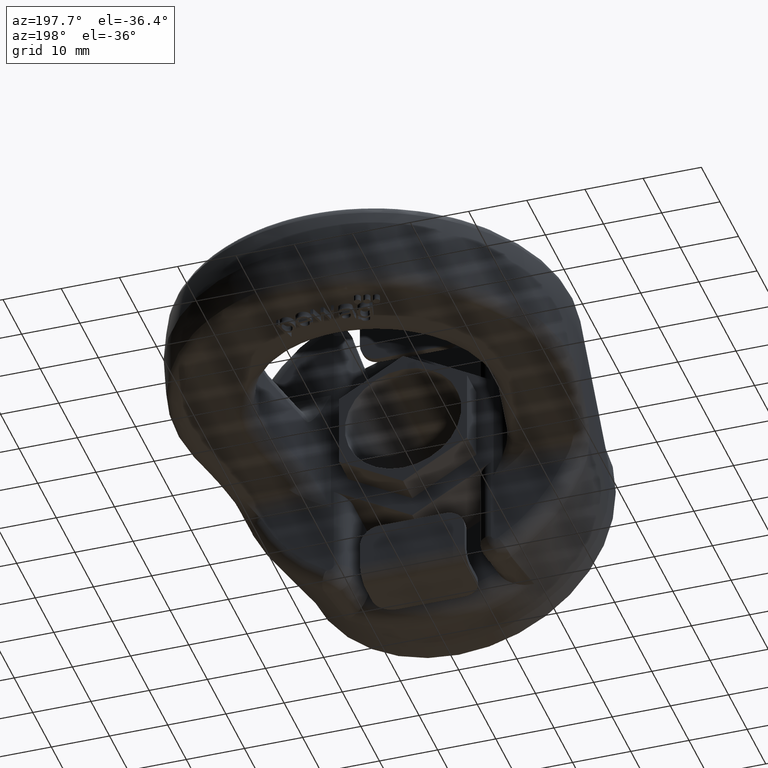
[diagram: clean part render]
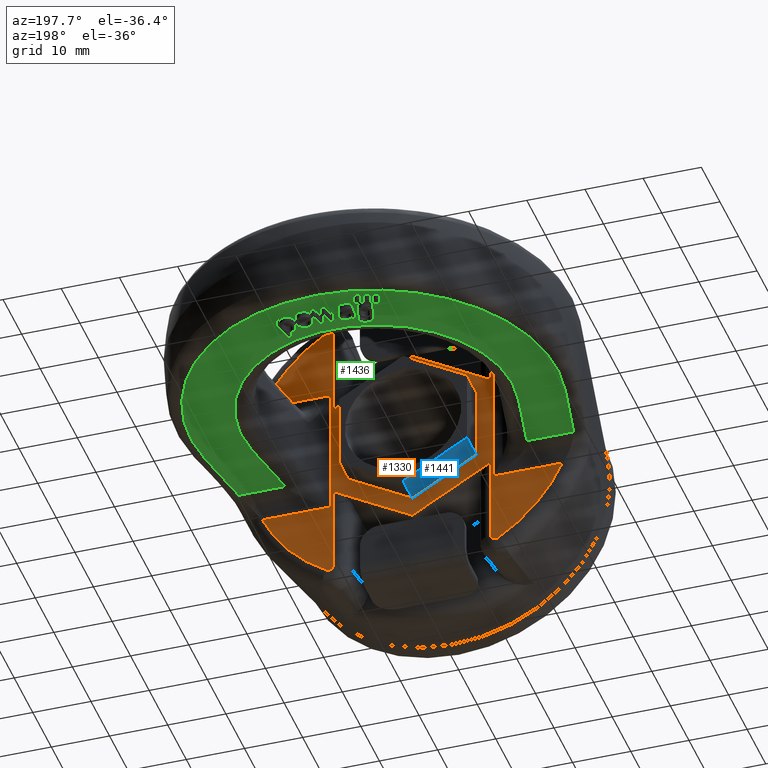
[diagram: same view with three faces highlighted in distinct colors, each labeled with its STEP entity id]
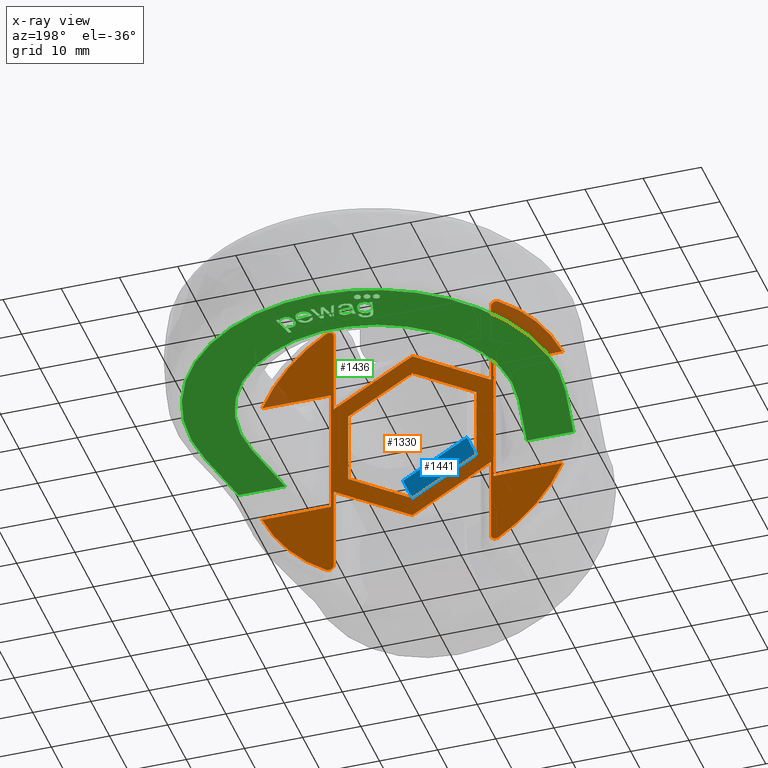
[diagram: x-ray of the same camera — body ghosted, the three highlighted faces saturated]
A machine part, auxiliary view with three faces highlighted in distinct colors.
The next image is the same camera in x-ray (body ghosted, the three faces saturated) — at least one of them is partly hidden behind the body in this view.
Their STEP definitions:

[orange] entity #1330 — the highlighted planar face has unit normal (0, 1, 0).
#1330=ADVANCED_FACE('',(#1781,#1782),#1567,.T.);
#1567=PLANE('',#5133);
#1695=CIRCLE('',#5129,28.1825615098555);
#1696=CIRCLE('',#5130,28.1825615098555);
#1697=CIRCLE('',#5131,28.1825615098555);
#1698=CIRCLE('',#5132,28.1825615098555);
#1781=FACE_BOUND('',#1844,.T.);
#1782=FACE_BOUND('',#1845,.T.);
#1844=EDGE_LOOP('',(#2799,#2800,#2801,#2802,#2803,#2804,#2805,#2806,#2807,
#2808,#2809,#2810,#2811,#2812,#2813,#2814,#2815,#2816,#2817,#2818,#2819,
#2820));
#1845=EDGE_LOOP('',(#2821,#2822,#2823,#2824,#2825,#2826));
#2142=LINE('',#6696,#2412);
#2143=LINE('',#6699,#2413);
#2144=LINE('',#6726,#2414);
#2145=LINE('',#6728,#2415);
#2146=LINE('',#6730,#2416);
#2147=LINE('',#6732,#2417);
#2148=LINE('',#6759,#2418);
#2149=LINE('',#6761,#2419);
#2150=LINE('',#6763,#2420);
#2151=LINE('',#6790,#2421);
#2152=LINE('',#6792,#2422);
#2153=LINE('',#6794,#2423);
#2154=LINE('',#6796,#2424);
#2155=LINE('',#6823,#2425);
#2156=LINE('',#6824,#2426);
#2157=LINE('',#6827,#2427);
#2158=LINE('',#6829,#2428);
#2159=LINE('',#6831,#2429);
#2160=LINE('',#6833,#2430);
#2161=LINE('',#6835,#2431);
#2412=VECTOR('',#5471,1.);
#2413=VECTOR('',#5472,1.);
#2414=VECTOR('',#5475,1.);
#2415=VECTOR('',#5476,1.);
#2416=VECTOR('',#5477,1.);
#2417=VECTOR('',#5478,1.);
#2418=VECTOR('',#5481,1.);
#2419=VECTOR('',#5482,1.);
#2420=VECTOR('',#5483,1.);
#2421=VECTOR('',#5486,1.);
#2422=VECTOR('',#5487,1.);
#2423=VECTOR('',#5488,1.);
#2424=VECTOR('',#5489,1.);
#2425=VECTOR('',#5492,1.);
#2426=VECTOR('',#5493,1.);
#2427=VECTOR('',#5494,1.);
#2428=VECTOR('',#5495,1.);
#2429=VECTOR('',#5496,1.);
#2430=VECTOR('',#5497,1.);
#2431=VECTOR('',#5498,1.);
#2799=ORIENTED_EDGE('',*,*,#4351,.T.);
#2800=ORIENTED_EDGE('',*,*,#4352,.T.);
#2801=ORIENTED_EDGE('',*,*,#4353,.T.);
#2802=ORIENTED_EDGE('',*,*,#4354,.T.);
#2803=ORIENTED_EDGE('',*,*,#4355,.T.);
#2804=ORIENTED_EDGE('',*,*,#4356,.T.);
#2805=ORIENTED_EDGE('',*,*,#4357,.T.);
#2806=ORIENTED_EDGE('',*,*,#4358,.T.);
#2807=ORIENTED_EDGE('',*,*,#4359,.T.);
#2808=ORIENTED_EDGE('',*,*,#4360,.T.);
#2809=ORIENTED_EDGE('',*,*,#4361,.T.);
#2810=ORIENTED_EDGE('',*,*,#4362,.T.);
#2811=ORIENTED_EDGE('',*,*,#4363,.T.);
#2812=ORIENTED_EDGE('',*,*,#4364,.T.);
#2813=ORIENTED_EDGE('',*,*,#4365,.T.);
#2814=ORIENTED_EDGE('',*,*,#4366,.T.);
#2815=ORIENTED_EDGE('',*,*,#4367,.T.);
#2816=ORIENTED_EDGE('',*,*,#4368,.T.);
#2817=ORIENTED_EDGE('',*,*,#4369,.T.);
#2818=ORIENTED_EDGE('',*,*,#4370,.T.);
#2819=ORIENTED_EDGE('',*,*,#4371,.T.);
#2820=ORIENTED_EDGE('',*,*,#4372,.T.);
#2821=ORIENTED_EDGE('',*,*,#4373,.T.);
#2822=ORIENTED_EDGE('',*,*,#4374,.T.);
#2823=ORIENTED_EDGE('',*,*,#4375,.T.);
#2824=ORIENTED_EDGE('',*,*,#4376,.T.);
#2825=ORIENTED_EDGE('',*,*,#4377,.F.);
#2826=ORIENTED_EDGE('',*,*,#4378,.T.);
#3963=VERTEX_POINT('',#6697);
#3964=VERTEX_POINT('',#6698);
#3965=VERTEX_POINT('',#6700);
#3966=VERTEX_POINT('',#6702);
#3967=VERTEX_POINT('',#6725);
#3968=VERTEX_POINT('',#6727);
#3969=VERTEX_POINT('',#6729);
#3970=VERTEX_POINT('',#6731);
#3971=VERTEX_POINT('',#6733);
#3972=VERTEX_POINT('',#6756);
#3973=VERTEX_POINT('',#6758);
#3974=VERTEX_POINT('',#6760);
#3975=VERTEX_POINT('',#6762);
#3976=VERTEX_POINT('',#6764);
#3977=VERTEX_POINT('',#6766);
#3978=VERTEX_POINT('',#6789);
#3979=VERTEX_POINT('',#6791);
#3980=VERTEX_POINT('',#6793);
#3981=VERTEX_POINT('',#6795);
#3982=VERTEX_POINT('',#6797);
#3983=VERTEX_POINT('',#6820);
#3984=VERTEX_POINT('',#6822);
#3985=VERTEX_POINT('',#6825);
#3986=VERTEX_POINT('',#6826);
#3987=VERTEX_POINT('',#6828);
#3988=VERTEX_POINT('',#6830);
#3989=VERTEX_POINT('',#6832);
#3990=VERTEX_POINT('',#6834);
#4351=EDGE_CURVE('',#3963,#3964,#2142,.T.);
#4352=EDGE_CURVE('',#3964,#3965,#2143,.T.);
#4353=EDGE_CURVE('',#3965,#3966,#1695,.T.);
#4354=EDGE_CURVE('',#3966,#3967,#4878,.T.);
#4355=EDGE_CURVE('',#3967,#3968,#2144,.T.);
#4356=EDGE_CURVE('',#3968,#3969,#2145,.T.);
#4357=EDGE_CURVE('',#3969,#3970,#2146,.T.);
#4358=EDGE_CURVE('',#3970,#3971,#2147,.T.);
#4359=EDGE_CURVE('',#3971,#3972,#4879,.T.);
#4360=EDGE_CURVE('',#3972,#3973,#1696,.T.);
#4361=EDGE_CURVE('',#3973,#3974,#2148,.T.);
#4362=EDGE_CURVE('',#3974,#3975,#2149,.T.);
#4363=EDGE_CURVE('',#3975,#3976,#2150,.T.);
#4364=EDGE_CURVE('',#3976,#3977,#1697,.T.);
#4365=EDGE_CURVE('',#3977,#3978,#4880,.T.);
#4366=EDGE_CURVE('',#3978,#3979,#2151,.T.);
#4367=EDGE_CURVE('',#3979,#3980,#2152,.T.);
#4368=EDGE_CURVE('',#3980,#3981,#2153,.T.);
#4369=EDGE_CURVE('',#3981,#3982,#2154,.T.);
#4370=EDGE_CURVE('',#3982,#3983,#4881,.T.);
#4371=EDGE_CURVE('',#3983,#3984,#1698,.T.);
#4372=EDGE_CURVE('',#3984,#3963,#2155,.T.);
#4373=EDGE_CURVE('',#3985,#3986,#2156,.T.);
#4374=EDGE_CURVE('',#3986,#3987,#2157,.T.);
#4375=EDGE_CURVE('',#3987,#3988,#2158,.T.);
#4376=EDGE_CURVE('',#3988,#3989,#2159,.T.);
#4377=EDGE_CURVE('',#3990,#3989,#2160,.T.);
#4378=EDGE_CURVE('',#3990,#3985,#2161,.T.);
#4878=B_SPLINE_CURVE_WITH_KNOTS('',3,(#6703,#6704,#6705,#6706,#6707,#6708,
#6709,#6710,#6711,#6712,#6713,#6714,#6715,#6716,#6717,#6718,#6719,#6720,
#6721,#6722,#6723,#6724),.UNSPECIFIED.,.F.,.F.,(4,3,3,3,3,3,3,4),(0.,0.155574890290313,
0.31123813576028,0.465796834556847,0.621147364247244,0.779386530394568,
0.941446885450693,1.),.UNSPECIFIED.);
#4879=B_SPLINE_CURVE_WITH_KNOTS('',3,(#6734,#6735,#6736,#6737,#6738,#6739,
#6740,#6741,#6742,#6743,#6744,#6745,#6746,#6747,#6748,#6749,#6750,#6751,
#6752,#6753,#6754,#6755),.UNSPECIFIED.,.F.,.F.,(4,3,3,3,3,3,3,4),(0.,0.165310444201862,
0.330738255450012,0.494231242784455,0.653812705288848,0.809869276415893,
0.964323604734041,1.),.UNSPECIFIED.);
#4880=B_SPLINE_CURVE_WITH_KNOTS('',3,(#6767,#6768,#6769,#6770,#6771,#6772,
#6773,#6774,#6775,#6776,#6777,#6778,#6779,#6780,#6781,#6782,#6783,#6784,
#6785,#6786,#6787,#6788),.UNSPECIFIED.,.F.,.F.,(4,3,3,3,3,3,3,4),(0.,0.155574890290314,
0.311238135760281,0.465796834556847,0.621147364247244,0.779386530394568,
0.941446885450693,1.),.UNSPECIFIED.);
#4881=B_SPLINE_CURVE_WITH_KNOTS('',3,(#6798,#6799,#6800,#6801,#6802,#6803,
#6804,#6805,#6806,#6807,#6808,#6809,#6810,#6811,#6812,#6813,#6814,#6815,
#6816,#6817,#6818,#6819),.UNSPECIFIED.,.F.,.F.,(4,3,3,3,3,3,3,4),(0.,0.165310444201862,
0.330738255450012,0.494231242784455,0.653812705288848,0.809869276415894,
0.964323604734041,1.),.UNSPECIFIED.);
#5129=AXIS2_PLACEMENT_3D('',#6701,#5473,#5474);
#5130=AXIS2_PLACEMENT_3D('',#6757,#5479,#5480);
#5131=AXIS2_PLACEMENT_3D('',#6765,#5484,#5485);
#5132=AXIS2_PLACEMENT_3D('',#6821,#5490,#5491);
#5133=AXIS2_PLACEMENT_3D('',#6836,#5499,#5500);
#5471=DIRECTION('',(0.,0.,-1.));
#5472=DIRECTION('',(1.,0.,2.34291072916505E-15));
#5473=DIRECTION('',(0.,1.,0.));
#5474=DIRECTION('',(2.34291072916505E-15,0.,-1.));
#5475=DIRECTION('',(-2.34291072916505E-15,0.,1.));
#5476=DIRECTION('',(-0.866025403784438,0.,-0.500000000000001));
#5477=DIRECTION('',(-0.86602540378444,0.,0.499999999999997));
#5478=DIRECTION('',(2.34291072916505E-15,0.,-1.));
#5479=DIRECTION('',(0.,1.,0.));
#5480=DIRECTION('',(2.34291072916505E-15,0.,-1.));
#5481=DIRECTION('',(1.,0.,2.34291072916505E-15));
#5482=DIRECTION('',(0.,0.,1.));
#5483=DIRECTION('',(-1.,0.,0.));
#5484=DIRECTION('',(0.,1.,0.));
#5485=DIRECTION('',(0.,0.,1.));
#5486=DIRECTION('',(0.,0.,-1.));
#5487=DIRECTION('',(0.866025403784439,0.,0.499999999999999));
#5488=DIRECTION('',(0.866025403784439,0.,-0.499999999999999));
#5489=DIRECTION('',(0.,0.,1.));
#5490=DIRECTION('',(0.,1.,0.));
#5491=DIRECTION('',(0.,0.,1.));
#5492=DIRECTION('',(-1.,0.,0.));
#5493=DIRECTION('',(0.866025403784438,0.,0.500000000000001));
#5494=DIRECTION('',(0.,0.,1.));
#5495=DIRECTION('',(-0.866025403784439,0.,0.499999999999999));
#5496=DIRECTION('',(-0.866025403784439,0.,-0.499999999999999));
#5497=DIRECTION('',(0.,0.,1.));
#5498=DIRECTION('',(0.866025403784441,0.,-0.499999999999997));
#5499=DIRECTION('',(0.,1.,0.));
#5500=DIRECTION('',(0.,0.,1.));
#6696=CARTESIAN_POINT('',(13.9734743867091,25.,0.));
#6697=CARTESIAN_POINT('',(13.9734743867091,25.,11.3333333333333));
#6698=CARTESIAN_POINT('',(13.9734743867092,25.,-11.3333333333333));
#6699=CARTESIAN_POINT('',(16.7299350638427,25.,-11.3333333333333));
#6700=CARTESIAN_POINT('',(25.803339489538,25.,-11.3333333333333));
#6701=CARTESIAN_POINT('',(1.26655918511641E-13,25.,-4.36647819720445E-14));
#6702=CARTESIAN_POINT('',(14.7620705693732,25.,-24.0070415870352));
#6703=CARTESIAN_POINT('',(14.7620705693732,25.,-24.0070415870352));
#6704=CARTESIAN_POINT('',(14.6839888221895,25.,-24.05505451099));
#6705=CARTESIAN_POINT('',(14.5966259357905,25.,-24.0904122197534));
#6706=CARTESIAN_POINT('',(14.5070758183612,25.,-24.109976896555));
#6707=CARTESIAN_POINT('',(14.4174931474555,25.,-24.1295486855554));
#6708=CARTESIAN_POINT('',(14.3232563765847,25.,-24.133834336953));
#6709=CARTESIAN_POINT('',(14.2322711254424,25.,-24.1224416232356));
#6710=CARTESIAN_POINT('',(14.1419033237951,25.,-24.1111262234261));
#6711=CARTESIAN_POINT('',(14.0522742229972,25.,-24.0840529935128));
#6712=CARTESIAN_POINT('',(13.9706660229413,25.,-24.0436242966375));
#6713=CARTESIAN_POINT('',(13.8886228147609,25.,-24.0029800967662));
#6714=CARTESIAN_POINT('',(13.8124683657977,25.,-23.9477727764083));
#6715=CARTESIAN_POINT('',(13.7480841003306,25.,-23.882675116297));
#6716=CARTESIAN_POINT('',(13.6825070682596,25.,-23.8163714734133));
#6717=CARTESIAN_POINT('',(13.6273703672364,25.,-23.7380571007785));
#6718=CARTESIAN_POINT('',(13.5867535704607,25.,-23.6541119042836));
#6719=CARTESIAN_POINT('',(13.5451685124067,25.,-23.5681655434988));
#6720=CARTESIAN_POINT('',(13.5176731486728,25.,-23.4740124471875));
#6721=CARTESIAN_POINT('',(13.5062661534722,25.,-23.3792180673647));
#6722=CARTESIAN_POINT('',(13.5020954489696,25.,-23.3445586903953));
#6723=CARTESIAN_POINT('',(13.5000000000001,25.,-23.3095868672195));
#6724=CARTESIAN_POINT('',(13.5000000000001,25.,-23.2746774531891));
#6725=CARTESIAN_POINT('',(13.5000000000001,25.,-23.2746774531891));
#6726=CARTESIAN_POINT('',(13.5000000000001,25.,-37.95));
#6727=CARTESIAN_POINT('',(13.5,25.,-8.37157890324954));
#6728=CARTESIAN_POINT('',(7.00000000000001,25.,-12.1243556529821));
#6729=CARTESIAN_POINT('',(3.8375815457692E-14,25.,-16.1658075373095));
#6730=CARTESIAN_POINT('',(-6.99999999999995,25.,-12.1243556529822));
#6731=CARTESIAN_POINT('',(-13.5,25.,-8.3715789032496));
#6732=CARTESIAN_POINT('',(-13.4999999999999,25.,-37.9500000000001));
#6733=CARTESIAN_POINT('',(-13.4999999999999,25.,-23.2746774531937));
#6734=CARTESIAN_POINT('',(-13.4999999999999,25.,-23.2746774531937));
#6735=CARTESIAN_POINT('',(-13.5000000000005,25.,-23.372073627592));
#6736=CARTESIAN_POINT('',(-13.5166935796184,25.,-23.4708162208276));
#6737=CARTESIAN_POINT('',(-13.5488353732076,25.,-23.5627559831304));
#6738=CARTESIAN_POINT('',(-13.5809898461274,25.,-23.6547320139335));
#6739=CARTESIAN_POINT('',(-13.6295354161381,25.,-23.7424688338125));
#6740=CARTESIAN_POINT('',(-13.690650479256,25.,-23.8183532816998));
#6741=CARTESIAN_POINT('',(-13.7510428068198,25.,-23.8933403339912));
#6742=CARTESIAN_POINT('',(-13.8254602395528,25.,-23.9588667244507));
#6743=CARTESIAN_POINT('',(-13.9076977718285,25.,-24.0089394667875));
#6744=CARTESIAN_POINT('',(-13.9879905240529,25.,-24.0578280725418));
#6745=CARTESIAN_POINT('',(-14.0780311376068,25.,-24.0933556792476));
#6746=CARTESIAN_POINT('',(-14.1701271979952,25.,-24.1122060769432));
#6747=CARTESIAN_POINT('',(-14.2602308971345,25.,-24.1306486743296));
#6748=CARTESIAN_POINT('',(-14.3548180574232,25.,-24.1336442723815));
#6749=CARTESIAN_POINT('',(-14.4459049583662,25.,-24.120917038843));
#6750=CARTESIAN_POINT('',(-14.5360941250639,25.,-24.1083152423682));
#6751=CARTESIAN_POINT('',(-14.6253187055609,25.,-24.0799760811261));
#6752=CARTESIAN_POINT('',(-14.7063440364802,25.,-24.0384094260594));
#6753=CARTESIAN_POINT('',(-14.7253100356245,25.,-24.0286797139375));
#6754=CARTESIAN_POINT('',(-14.7439126503648,25.,-24.0182069978511));
#6755=CARTESIAN_POINT('',(-14.7620705693754,25.,-24.0070415870337));
#6756=CARTESIAN_POINT('',(-14.7620705693754,25.,-24.0070415870337));
#6757=CARTESIAN_POINT('',(1.26655918511641E-13,25.,-4.36647819720445E-14));
#6758=CARTESIAN_POINT('',(-25.8033394895377,25.,-11.3333333333334));
#6759=CARTESIAN_POINT('',(16.7299350638427,25.,-11.3333333333333));
#6760=CARTESIAN_POINT('',(-13.9734743867091,25.,-11.3333333333334));
#6761=CARTESIAN_POINT('',(-13.9734743867091,25.,8.00000000000001));
#6762=CARTESIAN_POINT('',(-13.9734743867091,25.,11.3333333333333));
#6763=CARTESIAN_POINT('',(-16.7299350638427,25.,11.3333333333333));
#6764=CARTESIAN_POINT('',(-25.8033394895379,25.,11.3333333333333));
#6765=CARTESIAN_POINT('',(-1.26655918511641E-13,25.,4.36647819720448E-14));
#6766=CARTESIAN_POINT('',(-14.7620705693732,25.,24.0070415870352));
#6767=CARTESIAN_POINT('',(-14.7620705693732,25.,24.0070415870352));
#6768=CARTESIAN_POINT('',(-14.6839888221894,25.,24.0550545109901));
#6769=CARTESIAN_POINT('',(-14.5966259357905,25.,24.0904122197535));
#6770=CARTESIAN_POINT('',(-14.5070758183612,25.,24.109976896555));
#6771=CARTESIAN_POINT('',(-14.4174931474555,25.,24.1295486855554));
#6772=CARTESIAN_POINT('',(-14.3232563765846,25.,24.1338343369531));
#6773=CARTESIAN_POINT('',(-14.2322711254423,25.,24.1224416232356));
#6774=CARTESIAN_POINT('',(-14.1419033237951,25.,24.1111262234261));
#6775=CARTESIAN_POINT('',(-14.0522742229972,25.,24.0840529935129));
#6776=CARTESIAN_POINT('',(-13.9706660229412,25.,24.0436242966375));
#6777=CARTESIAN_POINT('',(-13.8886228147609,25.,24.0029800967662));
#6778=CARTESIAN_POINT('',(-13.8124683657977,25.,23.9477727764083));
#6779=CARTESIAN_POINT('',(-13.7480841003306,25.,23.882675116297));
#6780=CARTESIAN_POINT('',(-13.6825070682596,25.,23.8163714734133));
#6781=CARTESIAN_POINT('',(-13.6273703672364,25.,23.7380571007785));
#6782=CARTESIAN_POINT('',(-13.5867535704607,25.,23.6541119042836));
#6783=CARTESIAN_POINT('',(-13.5451685124066,25.,23.5681655434989));
#6784=CARTESIAN_POINT('',(-13.5176731486728,25.,23.4740124471875));
#6785=CARTESIAN_POINT('',(-13.5062661534721,25.,23.3792180673647));
#6786=CARTESIAN_POINT('',(-13.5020954489695,25.,23.3445586903954));
#6787=CARTESIAN_POINT('',(-13.5,25.,23.3095868672196));
#6788=CARTESIAN_POINT('',(-13.5,25.,23.2746774531891));
#6789=CARTESIAN_POINT('',(-13.5,25.,23.2746774531891));
#6790=CARTESIAN_POINT('',(-13.5,25.,37.95));
#6791=CARTESIAN_POINT('',(-13.5,25.,8.37157890324957));
#6792=CARTESIAN_POINT('',(-6.99999999999998,25.,12.1243556529821));
#6793=CARTESIAN_POINT('',(-5.00771532912387E-16,25.,16.1658075373095));
#6794=CARTESIAN_POINT('',(6.99999999999998,25.,12.1243556529821));
#6795=CARTESIAN_POINT('',(13.5,25.,8.37157890324957));
#6796=CARTESIAN_POINT('',(13.5,25.,37.95));
#6797=CARTESIAN_POINT('',(13.5,25.,23.2746774531937));
#6798=CARTESIAN_POINT('',(13.5,25.,23.2746774531937));
#6799=CARTESIAN_POINT('',(13.5000000000005,25.,23.372073627592));
#6800=CARTESIAN_POINT('',(13.5166935796185,25.,23.4708162208276));
#6801=CARTESIAN_POINT('',(13.5488353732076,25.,23.5627559831303));
#6802=CARTESIAN_POINT('',(13.5809898461275,25.,23.6547320139335));
#6803=CARTESIAN_POINT('',(13.6295354161382,25.,23.7424688338125));
#6804=CARTESIAN_POINT('',(13.690650479256,25.,23.8183532816997));
#6805=CARTESIAN_POINT('',(13.7510428068199,25.,23.8933403339911));
#6806=CARTESIAN_POINT('',(13.8254602395528,25.,23.9588667244507));
#6807=CARTESIAN_POINT('',(13.9076977718286,25.,24.0089394667874));
#6808=CARTESIAN_POINT('',(13.9879905240529,25.,24.0578280725418));
#6809=CARTESIAN_POINT('',(14.0780311376068,25.,24.0933556792476));
#6810=CARTESIAN_POINT('',(14.1701271979953,25.,24.1122060769432));
#6811=CARTESIAN_POINT('',(14.2602308971346,25.,24.1306486743296));
#6812=CARTESIAN_POINT('',(14.3548180574233,25.,24.1336442723814));
#6813=CARTESIAN_POINT('',(14.4459049583662,25.,24.120917038843));
#6814=CARTESIAN_POINT('',(14.5360941250639,25.,24.1083152423682));
#6815=CARTESIAN_POINT('',(14.625318705561,25.,24.0799760811261));
#6816=CARTESIAN_POINT('',(14.7063440364802,25.,24.0384094260594));
#6817=CARTESIAN_POINT('',(14.7253100356246,25.,24.0286797139374));
#6818=CARTESIAN_POINT('',(14.7439126503648,25.,24.018206997851));
#6819=CARTESIAN_POINT('',(14.7620705693755,25.,24.0070415870337));
#6820=CARTESIAN_POINT('',(14.7620705693755,25.,24.0070415870337));
#6821=CARTESIAN_POINT('',(-1.26655918511641E-13,25.,4.36647819720448E-14));
#6822=CARTESIAN_POINT('',(25.8033394895378,25.,11.3333333333333));
#6823=CARTESIAN_POINT('',(-16.7299350638427,25.,11.3333333333333));
#6824=CARTESIAN_POINT('',(11.,25.,-6.35085296108585));
#6825=CARTESIAN_POINT('',(3.14936876031361E-14,25.,-12.7017059221717));
#6826=CARTESIAN_POINT('',(11.,25.,-6.35085296108585));
#6827=CARTESIAN_POINT('',(11.,25.,37.95));
#6828=CARTESIAN_POINT('',(11.,25.,6.35085296108588));
#6829=CARTESIAN_POINT('',(0.,25.,12.7017059221717));
#6830=CARTESIAN_POINT('',(-1.73472451938073E-15,25.,12.7017059221717));
#6831=CARTESIAN_POINT('',(-11.,25.,6.35085296108588));
#6832=CARTESIAN_POINT('',(-11.,25.,6.35085296108587));
#6833=CARTESIAN_POINT('',(-11.,25.,37.95));
#6834=CARTESIAN_POINT('',(-11.,25.,-6.35085296108591));
#6835=CARTESIAN_POINT('',(2.97589630837554E-14,25.,-12.7017059221717));
#6836=CARTESIAN_POINT('',(-16.7299350638427,25.,37.95));

[blue] entity #1441 — the highlighted planar face has unit normal (-0.5, 0, -0.866).
#1208=FACE_OUTER_BOUND('',#1975,.T.);
#1441=ADVANCED_FACE('',(#1208),#1620,.T.);
#1620=PLANE('',#5244);
#1975=EDGE_LOOP('',(#3335,#3336,#3337,#3338));
#2161=LINE('',#6835,#2431);
#2171=LINE('',#6874,#2441);
#2176=LINE('',#6885,#2446);
#2269=LINE('',#8438,#2567);
#2431=VECTOR('',#5498,1.);
#2441=VECTOR('',#5528,1.);
#2446=VECTOR('',#5541,1.);
#2567=VECTOR('',#5854,1.);
#3335=ORIENTED_EDGE('',*,*,#4378,.F.);
#3336=ORIENTED_EDGE('',*,*,#4393,.T.);
#3337=ORIENTED_EDGE('',*,*,#4399,.F.);
#3338=ORIENTED_EDGE('',*,*,#4620,.F.);
#3985=VERTEX_POINT('',#6825);
#3990=VERTEX_POINT('',#6834);
#4001=VERTEX_POINT('',#6872);
#4005=VERTEX_POINT('',#6886);
#4378=EDGE_CURVE('',#3990,#3985,#2161,.T.);
#4393=EDGE_CURVE('',#3990,#4001,#2171,.T.);
#4399=EDGE_CURVE('',#4005,#4001,#2176,.T.);
#4620=EDGE_CURVE('',#3985,#4005,#2269,.T.);
#5244=AXIS2_PLACEMENT_3D('',#8440,#5857,#5858);
#5498=DIRECTION('',(0.866025403784441,0.,-0.499999999999997));
#5528=DIRECTION('',(0.,1.,0.));
#5541=DIRECTION('',(-0.86602540378444,0.,0.499999999999997));
#5854=DIRECTION('',(0.,1.,0.));
#5857=DIRECTION('',(-0.499999999999997,0.,-0.86602540378444));
#5858=DIRECTION('',(-0.866025403784441,0.,0.499999999999997));
#6825=CARTESIAN_POINT('',(3.14936876031361E-14,25.,-12.7017059221717));
#6834=CARTESIAN_POINT('',(-11.,25.,-6.35085296108591));
#6835=CARTESIAN_POINT('',(2.97589630837554E-14,25.,-12.7017059221717));
#6872=CARTESIAN_POINT('',(-11.,30.,-6.3508529610859));
#6874=CARTESIAN_POINT('',(-11.,0.300000000000005,-6.3508529610859));
#6885=CARTESIAN_POINT('',(2.97589630837554E-14,30.,-12.7017059221717));
#6886=CARTESIAN_POINT('',(3.14936865597322E-14,30.,-12.7017059221717));
#8438=CARTESIAN_POINT('',(3.14936865597322E-14,0.300000000000005,-12.7017059221717));
#8440=CARTESIAN_POINT('',(2.97589630837554E-14,0.300000000000005,-12.7017059221717));

[green] entity #1436 — the highlighted planar face has unit normal (-0, -0, 1).
#1436=ADVANCED_FACE('',(#1805,#1806,#1807,#1808,#1809,#1810,#1811,#1812,
#1813),#1615,.F.);
#1615=PLANE('',#5238);
#1721=CIRCLE('',#5233,0.6);
#1722=CIRCLE('',#5234,0.600000000000001);
#1723=CIRCLE('',#5235,0.6);
#1724=CIRCLE('',#5236,23.3333333333333);
#1725=CIRCLE('',#5237,31.5238005322962);
#1805=FACE_BOUND('',#1962,.T.);
#1806=FACE_BOUND('',#1963,.T.);
#1807=FACE_BOUND('',#1964,.T.);
#1808=FACE_BOUND('',#1965,.T.);
#1809=FACE_BOUND('',#1966,.T.);
#1810=FACE_BOUND('',#1967,.T.);
#1811=FACE_BOUND('',#1968,.T.);
#1812=FACE_BOUND('',#1969,.T.);
#1813=FACE_BOUND('',#1970,.T.);
#1962=EDGE_LOOP('',(#3263,#3264,#3265,#3266,#3267,#3268,#3269));
#1963=EDGE_LOOP('',(#3270,#3271,#3272,#3273,#3274,#3275,#3276,#3277,#3278,
#3279,#3280,#3281,#3282,#3283,#3284));
#1964=EDGE_LOOP('',(#3285,#3286,#3287,#3288,#3289));
#1965=EDGE_LOOP('',(#3290));
#1966=EDGE_LOOP('',(#3291));
#1967=EDGE_LOOP('',(#3292));
#1968=EDGE_LOOP('',(#3293,#3294,#3295,#3296,#3297,#3298,#3299,#3300));
#1969=EDGE_LOOP('',(#3301,#3302,#3303,#3304,#3305,#3306));
#1970=EDGE_LOOP('',(#3307,#3308,#3309,#3310,#3311,#3312,#3313,#3314,#3315));
#2234=LINE('',#8134,#2532);
#2235=LINE('',#8166,#2533);
#2236=LINE('',#8168,#2534);
#2237=LINE('',#8169,#2535);
#2238=LINE('',#8172,#2536);
#2239=LINE('',#8174,#2537);
#2240=LINE('',#8176,#2538);
#2241=LINE('',#8190,#2539);
#2242=LINE('',#8192,#2540);
#2243=LINE('',#8208,#2541);
#2244=LINE('',#8210,#2542);
#2245=LINE('',#8212,#2543);
#2246=LINE('',#8214,#2544);
#2247=LINE('',#8216,#2545);
#2248=LINE('',#8232,#2546);
#2249=LINE('',#8255,#2547);
#2250=LINE('',#8265,#2548);
#2251=LINE('',#8267,#2549);
#2252=LINE('',#8281,#2550);
#2253=LINE('',#8283,#2551);
#2254=LINE('',#8284,#2552);
#2255=LINE('',#8287,#2553);
#2256=LINE('',#8289,#2554);
#2257=LINE('',#8291,#2555);
#2258=LINE('',#8293,#2556);
#2259=LINE('',#8317,#2557);
#2260=LINE('',#8362,#2558);
#2532=VECTOR('',#5799,1.);
#2533=VECTOR('',#5800,1.);
#2534=VECTOR('',#5801,1.);
#2535=VECTOR('',#5802,1.);
#2536=VECTOR('',#5803,1.);
#2537=VECTOR('',#5804,1.);
#2538=VECTOR('',#5805,1.);
#2539=VECTOR('',#5806,1.);
#2540=VECTOR('',#5807,1.);
#2541=VECTOR('',#5808,1.);
#2542=VECTOR('',#5809,1.);
#2543=VECTOR('',#5810,1.);
#2544=VECTOR('',#5811,1.);
#2545=VECTOR('',#5812,1.);
#2546=VECTOR('',#5813,1.);
#2547=VECTOR('',#5814,1.);
#2548=VECTOR('',#5823,1.);
#2549=VECTOR('',#5824,1.);
#2550=VECTOR('',#5827,1.);
#2551=VECTOR('',#5828,1.);
#2552=VECTOR('',#5829,1.);
#2553=VECTOR('',#5830,1.);
#2554=VECTOR('',#5831,1.);
#2555=VECTOR('',#5832,1.);
#2556=VECTOR('',#5833,1.);
#2557=VECTOR('',#5834,1.);
#2558=VECTOR('',#5835,1.);
#3263=ORIENTED_EDGE('',*,*,#4554,.T.);
#3264=ORIENTED_EDGE('',*,*,#4555,.T.);
#3265=ORIENTED_EDGE('',*,*,#4556,.T.);
#3266=ORIENTED_EDGE('',*,*,#4557,.T.);
#3267=ORIENTED_EDGE('',*,*,#4558,.T.);
#3268=ORIENTED_EDGE('',*,*,#4559,.T.);
#3269=ORIENTED_EDGE('',*,*,#4560,.T.);
#3270=ORIENTED_EDGE('',*,*,#4561,.T.);
#3271=ORIENTED_EDGE('',*,*,#4562,.T.);
#3272=ORIENTED_EDGE('',*,*,#4563,.T.);
#3273=ORIENTED_EDGE('',*,*,#4564,.T.);
#3274=ORIENTED_EDGE('',*,*,#4565,.T.);
#3275=ORIENTED_EDGE('',*,*,#4566,.T.);
#3276=ORIENTED_EDGE('',*,*,#4567,.T.);
#3277=ORIENTED_EDGE('',*,*,#4568,.T.);
#3278=ORIENTED_EDGE('',*,*,#4569,.T.);
#3279=ORIENTED_EDGE('',*,*,#4570,.T.);
#3280=ORIENTED_EDGE('',*,*,#4571,.T.);
#3281=ORIENTED_EDGE('',*,*,#4572,.T.);
#3282=ORIENTED_EDGE('',*,*,#4573,.T.);
#3283=ORIENTED_EDGE('',*,*,#4574,.T.);
#3284=ORIENTED_EDGE('',*,*,#4575,.T.);
#3285=ORIENTED_EDGE('',*,*,#4576,.T.);
#3286=ORIENTED_EDGE('',*,*,#4577,.T.);
#3287=ORIENTED_EDGE('',*,*,#4578,.T.);
#3288=ORIENTED_EDGE('',*,*,#4579,.T.);
#3289=ORIENTED_EDGE('',*,*,#4580,.T.);
#3290=ORIENTED_EDGE('',*,*,#4581,.F.);
#3291=ORIENTED_EDGE('',*,*,#4582,.F.);
#3292=ORIENTED_EDGE('',*,*,#4583,.F.);
#3293=ORIENTED_EDGE('',*,*,#4584,.T.);
#3294=ORIENTED_EDGE('',*,*,#4585,.T.);
#3295=ORIENTED_EDGE('',*,*,#4586,.T.);
#3296=ORIENTED_EDGE('',*,*,#4587,.T.);
#3297=ORIENTED_EDGE('',*,*,#4588,.T.);
#3298=ORIENTED_EDGE('',*,*,#4589,.T.);
#3299=ORIENTED_EDGE('',*,*,#4590,.T.);
#3300=ORIENTED_EDGE('',*,*,#4591,.T.);
#3301=ORIENTED_EDGE('',*,*,#4592,.T.);
#3302=ORIENTED_EDGE('',*,*,#4593,.T.);
#3303=ORIENTED_EDGE('',*,*,#4594,.T.);
#3304=ORIENTED_EDGE('',*,*,#4595,.T.);
#3305=ORIENTED_EDGE('',*,*,#4596,.T.);
#3306=ORIENTED_EDGE('',*,*,#4597,.T.);
#3307=ORIENTED_EDGE('',*,*,#4598,.T.);
#3308=ORIENTED_EDGE('',*,*,#4599,.T.);
#3309=ORIENTED_EDGE('',*,*,#4600,.T.);
#3310=ORIENTED_EDGE('',*,*,#4601,.T.);
#3311=ORIENTED_EDGE('',*,*,#4602,.T.);
#3312=ORIENTED_EDGE('',*,*,#4603,.T.);
#3313=ORIENTED_EDGE('',*,*,#4604,.T.);
#3314=ORIENTED_EDGE('',*,*,#4605,.T.);
#3315=ORIENTED_EDGE('',*,*,#4606,.T.);
#4075=VERTEX_POINT('',#8127);
#4076=VERTEX_POINT('',#8128);
#4077=VERTEX_POINT('',#8133);
#4078=VERTEX_POINT('',#8135);
#4079=VERTEX_POINT('',#8148);
#4080=VERTEX_POINT('',#8165);
#4081=VERTEX_POINT('',#8167);
#4082=VERTEX_POINT('',#8170);
#4083=VERTEX_POINT('',#8171);
#4084=VERTEX_POINT('',#8173);
#4085=VERTEX_POINT('',#8175);
#4086=VERTEX_POINT('',#8177);
#4087=VERTEX_POINT('',#8184);
#4088=VERTEX_POINT('',#8189);
#4089=VERTEX_POINT('',#8191);
#4090=VERTEX_POINT('',#8193);
#4091=VERTEX_POINT('',#8200);
#4092=VERTEX_POINT('',#8207);
#4093=VERTEX_POINT('',#8209);
#4094=VERTEX_POINT('',#8211);
#4095=VERTEX_POINT('',#8213);
#4096=VERTEX_POINT('',#8215);
#4097=VERTEX_POINT('',#8225);
#4098=VERTEX_POINT('',#8226);
#4099=VERTEX_POINT('',#8231);
#4100=VERTEX_POINT('',#8233);
#4101=VERTEX_POINT('',#8254);
#4102=VERTEX_POINT('',#8257);
#4103=VERTEX_POINT('',#8259);
#4104=VERTEX_POINT('',#8261);
#4105=VERTEX_POINT('',#8263);
#4106=VERTEX_POINT('',#8264);
#4107=VERTEX_POINT('',#8266);
#4108=VERTEX_POINT('',#8268);
#4109=VERTEX_POINT('',#8273);
#4110=VERTEX_POINT('',#8275);
#4111=VERTEX_POINT('',#8280);
#4112=VERTEX_POINT('',#8282);
#4113=VERTEX_POINT('',#8285);
#4114=VERTEX_POINT('',#8286);
#4115=VERTEX_POINT('',#8288);
#4116=VERTEX_POINT('',#8290);
#4117=VERTEX_POINT('',#8292);
#4118=VERTEX_POINT('',#8294);
#4119=VERTEX_POINT('',#8318);
#4120=VERTEX_POINT('',#8319);
#4121=VERTEX_POINT('',#8324);
#4122=VERTEX_POINT('',#8341);
#4123=VERTEX_POINT('',#8348);
#4124=VERTEX_POINT('',#8361);
#4125=VERTEX_POINT('',#8363);
#4126=VERTEX_POINT('',#8368);
#4127=VERTEX_POINT('',#8381);
#4554=EDGE_CURVE('',#4075,#4076,#4979,.T.);
#4555=EDGE_CURVE('',#4076,#4077,#4980,.T.);
#4556=EDGE_CURVE('',#4077,#4078,#2234,.T.);
#4557=EDGE_CURVE('',#4078,#4079,#4981,.T.);
#4558=EDGE_CURVE('',#4079,#4080,#4982,.T.);
#4559=EDGE_CURVE('',#4080,#4081,#2235,.T.);
#4560=EDGE_CURVE('',#4081,#4075,#2236,.T.);
#4561=EDGE_CURVE('',#4082,#4083,#2237,.T.);
#4562=EDGE_CURVE('',#4083,#4084,#2238,.T.);
#4563=EDGE_CURVE('',#4084,#4085,#2239,.T.);
#4564=EDGE_CURVE('',#4085,#4086,#2240,.T.);
#4565=EDGE_CURVE('',#4086,#4087,#4983,.T.);
#4566=EDGE_CURVE('',#4087,#4088,#4984,.T.);
#4567=EDGE_CURVE('',#4088,#4089,#2241,.T.);
#4568=EDGE_CURVE('',#4089,#4090,#2242,.T.);
#4569=EDGE_CURVE('',#4090,#4091,#4985,.T.);
#4570=EDGE_CURVE('',#4091,#4092,#4986,.T.);
#4571=EDGE_CURVE('',#4092,#4093,#2243,.T.);
#4572=EDGE_CURVE('',#4093,#4094,#2244,.T.);
#4573=EDGE_CURVE('',#4094,#4095,#2245,.T.);
#4574=EDGE_CURVE('',#4095,#4096,#2246,.T.);
#4575=EDGE_CURVE('',#4096,#4082,#2247,.T.);
#4576=EDGE_CURVE('',#4097,#4098,#4987,.T.);
#4577=EDGE_CURVE('',#4098,#4099,#4988,.T.);
#4578=EDGE_CURVE('',#4099,#4100,#2248,.T.);
#4579=EDGE_CURVE('',#4100,#4101,#4989,.T.);
#4580=EDGE_CURVE('',#4101,#4097,#2249,.T.);
#4581=EDGE_CURVE('',#4102,#4102,#1721,.T.);
#4582=EDGE_CURVE('',#4103,#4103,#1722,.T.);
#4583=EDGE_CURVE('',#4104,#4104,#1723,.T.);
#4584=EDGE_CURVE('',#4105,#4106,#1724,.T.);
#4585=EDGE_CURVE('',#4106,#4107,#2250,.T.);
#4586=EDGE_CURVE('',#4107,#4108,#2251,.T.);
#4587=EDGE_CURVE('',#4108,#4109,#4990,.T.);
#4588=EDGE_CURVE('',#4109,#4110,#1725,.T.);
#4589=EDGE_CURVE('',#4110,#4111,#4991,.T.);
#4590=EDGE_CURVE('',#4111,#4112,#2252,.T.);
#4591=EDGE_CURVE('',#4112,#4105,#2253,.T.);
#4592=EDGE_CURVE('',#4113,#4114,#2254,.T.);
#4593=EDGE_CURVE('',#4114,#4115,#2255,.T.);
#4594=EDGE_CURVE('',#4115,#4116,#2256,.T.);
#4595=EDGE_CURVE('',#4116,#4117,#2257,.T.);
#4596=EDGE_CURVE('',#4117,#4118,#2258,.T.);
#4597=EDGE_CURVE('',#4118,#4113,#4992,.T.);
#4598=EDGE_CURVE('',#4119,#4120,#2259,.T.);
#4599=EDGE_CURVE('',#4120,#4121,#4993,.T.);
#4600=EDGE_CURVE('',#4121,#4122,#4994,.T.);
#4601=EDGE_CURVE('',#4122,#4123,#4995,.T.);
#4602=EDGE_CURVE('',#4123,#4124,#4996,.T.);
#4603=EDGE_CURVE('',#4124,#4125,#2260,.T.);
#4604=EDGE_CURVE('',#4125,#4126,#4997,.T.);
#4605=EDGE_CURVE('',#4126,#4127,#4998,.T.);
#4606=EDGE_CURVE('',#4127,#4119,#4999,.T.);
#4979=B_SPLINE_CURVE_WITH_KNOTS('',3,(#8115,#8116,#8117,#8118,#8119,#8120,
#8121,#8122,#8123,#8124,#8125,#8126),.UNSPECIFIED.,.F.,.F.,(4,2,2,2,2,4),
(0.,0.305645754892089,0.470829306249211,0.636012857606333,0.802206343843955,
1.),.UNSPECIFIED.);
#4980=B_SPLINE_CURVE_WITH_KNOTS('',3,(#8129,#8130,#8131,#8132),
 .UNSPECIFIED.,.F.,.F.,(4,4),(0.,1.),.UNSPECIFIED.);
#4981=B_SPLINE_CURVE_WITH_KNOTS('',3,(#8136,#8137,#8138,#8139,#8140,#8141,
#8142,#8143,#8144,#8145,#8146,#8147),.UNSPECIFIED.,.F.,.F.,(4,2,2,2,2,4),
(0.,0.163304651309284,0.382303784248524,0.619375661168187,0.85644753808786,
1.),.UNSPECIFIED.);
#4982=B_SPLINE_CURVE_WITH_KNOTS('',3,(#8149,#8150,#8151,#8152,#8153,#8154,
#8155,#8156,#8157,#8158,#8159,#8160,#8161,#8162,#8163,#8164),
 .UNSPECIFIED.,.F.,.F.,(4,2,2,2,2,2,2,4),(0.,0.139503666745451,0.312880428291714,
0.486257189837977,0.605370995480449,0.72385410568907,0.842337215897691,
1.),.UNSPECIFIED.);
#4983=B_SPLINE_CURVE_WITH_KNOTS('',3,(#8178,#8179,#8180,#8181,#8182,#8183),
 .UNSPECIFIED.,.F.,.F.,(4,2,4),(0.,0.728909607654965,1.),.UNSPECIFIED.);
#4984=B_SPLINE_CURVE_WITH_KNOTS('',3,(#8185,#8186,#8187,#8188),
 .UNSPECIFIED.,.F.,.F.,(4,4),(0.,1.),.UNSPECIFIED.);
#4985=B_SPLINE_CURVE_WITH_KNOTS('',3,(#8194,#8195,#8196,#8197,#8198,#8199),
 .UNSPECIFIED.,.F.,.F.,(4,2,4),(0.,0.752082276025118,1.),.UNSPECIFIED.);
#4986=B_SPLINE_CURVE_WITH_KNOTS('',3,(#8201,#8202,#8203,#8204,#8205,#8206),
 .UNSPECIFIED.,.F.,.F.,(4,2,4),(0.,0.250451922487275,1.),.UNSPECIFIED.);
#4987=B_SPLINE_CURVE_WITH_KNOTS('',3,(#8217,#8218,#8219,#8220,#8221,#8222,
#8223,#8224),.UNSPECIFIED.,.F.,.F.,(4,2,2,4),(0.,0.36347796861322,0.728087675912443,
1.),.UNSPECIFIED.);
#4988=B_SPLINE_CURVE_WITH_KNOTS('',3,(#8227,#8228,#8229,#8230),
 .UNSPECIFIED.,.F.,.F.,(4,4),(0.,1.),.UNSPECIFIED.);
#4989=B_SPLINE_CURVE_WITH_KNOTS('',3,(#8234,#8235,#8236,#8237,#8238,#8239,
#8240,#8241,#8242,#8243,#8244,#8245,#8246,#8247,#8248,#8249,#8250,#8251,
#8252,#8253),.UNSPECIFIED.,.F.,.F.,(4,2,2,2,2,2,2,2,2,4),(0.,0.102921203122042,
0.206156274885328,0.336063021724234,0.465707475917732,0.599570296299742,
0.733433116681749,0.862845255056168,0.992257393430591,1.),.UNSPECIFIED.);
#4990=B_SPLINE_CURVE_WITH_KNOTS('',3,(#8269,#8270,#8271,#8272),
 .UNSPECIFIED.,.F.,.F.,(4,4),(0.,1.),.UNSPECIFIED.);
#4991=B_SPLINE_CURVE_WITH_KNOTS('',3,(#8276,#8277,#8278,#8279),
 .UNSPECIFIED.,.F.,.F.,(4,4),(0.,1.),.UNSPECIFIED.);
#4992=B_SPLINE_CURVE_WITH_KNOTS('',3,(#8295,#8296,#8297,#8298,#8299,#8300,
#8301,#8302,#8303,#8304,#8305,#8306,#8307,#8308,#8309,#8310,#8311,#8312,
#8313,#8314,#8315,#8316),.UNSPECIFIED.,.F.,.F.,(4,2,2,2,2,2,2,2,2,2,4),
(0.,0.0830854503763923,0.165678296755082,0.27327222095651,0.380460889370536,
0.487248686046698,0.601946689884058,0.717055250849212,0.831909514623434,
0.91582130550871,1.),.UNSPECIFIED.);
#4993=B_SPLINE_CURVE_WITH_KNOTS('',3,(#8320,#8321,#8322,#8323),
 .UNSPECIFIED.,.F.,.F.,(4,4),(0.,1.),.UNSPECIFIED.);
#4994=B_SPLINE_CURVE_WITH_KNOTS('',3,(#8325,#8326,#8327,#8328,#8329,#8330,
#8331,#8332,#8333,#8334,#8335,#8336,#8337,#8338,#8339,#8340),
 .UNSPECIFIED.,.F.,.F.,(4,2,2,2,2,2,2,4),(0.,0.121639465164564,0.243930904991192,
0.445161792748237,0.646392680505282,0.763565096161286,0.881519242448381,
1.),.UNSPECIFIED.);
#4995=B_SPLINE_CURVE_WITH_KNOTS('',3,(#8342,#8343,#8344,#8345,#8346,#8347),
 .UNSPECIFIED.,.F.,.F.,(4,2,4),(0.,0.329344693449402,1.),.UNSPECIFIED.);
#4996=B_SPLINE_CURVE_WITH_KNOTS('',3,(#8349,#8350,#8351,#8352,#8353,#8354,
#8355,#8356,#8357,#8358,#8359,#8360),.UNSPECIFIED.,.F.,.F.,(4,2,2,2,2,4),
(0.,0.0173977322143003,0.217983350684967,0.49067503531644,0.745337517658224,
1.),.UNSPECIFIED.);
#4997=B_SPLINE_CURVE_WITH_KNOTS('',3,(#8364,#8365,#8366,#8367),
 .UNSPECIFIED.,.F.,.F.,(4,4),(0.,1.),.UNSPECIFIED.);
#4998=B_SPLINE_CURVE_WITH_KNOTS('',3,(#8369,#8370,#8371,#8372,#8373,#8374,
#8375,#8376,#8377,#8378,#8379,#8380),.UNSPECIFIED.,.F.,.F.,(4,2,2,2,2,4),
(0.,0.201730292707493,0.402155128097318,0.601755169925868,0.80019954507806,
1.),.UNSPECIFIED.);
#4999=B_SPLINE_CURVE_WITH_KNOTS('',3,(#8382,#8383,#8384,#8385,#8386,#8387,
#8388,#8389,#8390,#8391),.UNSPECIFIED.,.F.,.F.,(4,2,2,2,4),(0.,0.161403604805119,
0.323059797411187,0.661780038481083,1.),.UNSPECIFIED.);
#5233=AXIS2_PLACEMENT_3D('',#8256,#5815,#5816);
#5234=AXIS2_PLACEMENT_3D('',#8258,#5817,#5818);
#5235=AXIS2_PLACEMENT_3D('',#8260,#5819,#5820);
#5236=AXIS2_PLACEMENT_3D('',#8262,#5821,#5822);
#5237=AXIS2_PLACEMENT_3D('',#8274,#5825,#5826);
#5238=AXIS2_PLACEMENT_3D('',#8392,#5836,#5837);
#5799=DIRECTION('',(-0.926036898244061,-0.377432991523685,-2.21998654380676E-15));
#5800=DIRECTION('',(-0.24044171176868,0.970663578816959,-4.33807858745539E-16));
#5801=DIRECTION('',(-0.970663578816965,-0.240441711768658,-2.30626271952841E-15));
#5802=DIRECTION('',(0.258675883018079,-0.965964175083537,4.77155983893917E-16));
#5803=DIRECTION('',(0.999999995678886,9.29635860319111E-5,2.34292312412684E-15));
#5804=DIRECTION('',(0.297319028478966,0.954778191678216,8.23997798997135E-16));
#5805=DIRECTION('',(-0.999999995678886,-9.29635860360413E-5,-2.34292312412684E-15));
#5806=DIRECTION('',(-0.26668775938768,0.963782983348834,-4.9621815380929E-16));
#5807=DIRECTION('',(-0.999999995678886,-9.29635860331523E-5,-2.34292312412684E-15));
#5808=DIRECTION('',(-0.999999995678886,-9.2963586044615E-5,-2.34292312412684E-15));
#5809=DIRECTION('',(0.303109223404765,-0.952955822001713,5.82995171931975E-16));
#5810=DIRECTION('',(0.999999995678886,9.29635860388953E-5,2.34292312412684E-15));
#5811=DIRECTION('',(0.260553429481472,0.965459429694197,7.3928458989856E-16));
#5812=DIRECTION('',(0.226101851815541,0.974103666251998,6.5972110818598E-16));
#5813=DIRECTION('',(-0.99995564898741,0.00941807083051332,-2.34155006881195E-15));
#5814=DIRECTION('',(0.991600377783165,-0.129339440157616,2.30597207467451E-15));
#5815=DIRECTION('',(2.34291072916505E-15,1.33440267382831E-16,-1.));
#5816=DIRECTION('',(0.,1.00000000000001,0.));
#5817=DIRECTION('',(2.34291072916505E-15,1.33440267382831E-16,-1.));
#5818=DIRECTION('',(0.,1.,0.));
#5819=DIRECTION('',(2.34291072916505E-15,1.33440267382831E-16,-1.));
#5820=DIRECTION('',(0.,1.00000000000001,0.));
#5821=DIRECTION('',(-2.34291072916505E-15,-1.33440267382831E-16,1.));
#5822=DIRECTION('',(-2.64127535230249E-31,1.,1.48690583655155E-16));
#5823=DIRECTION('',(0.187770624463788,-0.98221290593663,3.08863057883179E-16));
#5824=DIRECTION('',(-1.,0.,-2.34291072916505E-15));
#5825=DIRECTION('',(2.34291072916505E-15,1.33440267382831E-16,-1.));
#5826=DIRECTION('',(-2.93253464904644E-31,1.,1.10058016272472E-16));
#5827=DIRECTION('',(-1.,0.,-2.34291072916505E-15));
#5828=DIRECTION('',(0.187770624463788,0.98221290593663,5.70996563473282E-16));
#5829=DIRECTION('',(-0.240261234879317,-0.97070826668689,-6.9244219565862E-16));
#5830=DIRECTION('',(0.970708266686891,-0.24026123487931,2.2422222894859E-15));
#5831=DIRECTION('',(0.240261234879319,0.970708266686889,6.92442195658623E-16));
#5832=DIRECTION('',(-0.970708266686891,0.240261234879313,-2.2422222894859E-15));
#5833=DIRECTION('',(-0.240261234879314,-0.970708266686891,-6.92442195658611E-16));
#5834=DIRECTION('',(0.991576312927654,0.129523803375288,2.34045847329896E-15));
#5835=DIRECTION('',(0.965560779386231,0.260177595713109,2.29694087762395E-15));
#5836=DIRECTION('',(-2.34291072916505E-15,-1.33440267382831E-16,1.));
#5837=DIRECTION('',(0.,1.,1.33573707650214E-16));
#8115=CARTESIAN_POINT('',(-8.27434339115757,72.4085009868514,-8.00000000000002));
#8116=CARTESIAN_POINT('',(-8.07357548447735,71.5980006232652,-8.00000000000002));
#8117=CARTESIAN_POINT('',(-7.87280757779714,70.7875002596789,-8.00000000000002));
#8118=CARTESIAN_POINT('',(-7.56353642743314,69.5389721260663,-8.00000000000002));
#8119=CARTESIAN_POINT('',(-7.44129309872867,69.2403404994143,-8.00000000000002));
#8120=CARTESIAN_POINT('',(-7.16883419307574,68.9198830123601,-8.00000000000002));
#8121=CARTESIAN_POINT('',(-6.98940056581614,68.8104161516886,-8.00000000000002));
#8122=CARTESIAN_POINT('',(-6.54375091632205,68.6966324594976,-8.00000000000002));
#8123=CARTESIAN_POINT('',(-6.28825700489694,68.703676575954,-8.00000000000001));
#8124=CARTESIAN_POINT('',(-5.65963437612188,68.8593918043995,-8.00000000000001));
#8125=CARTESIAN_POINT('',(-5.4024266313344,69.003224048579,-8.00000000000001));
#8126=CARTESIAN_POINT('',(-5.22960993360183,69.2062715800014,-8.00000000000001));
#8127=CARTESIAN_POINT('',(-8.27434339115757,72.4085009868514,-8.00000000000002));
#8128=CARTESIAN_POINT('',(-5.22960993360183,69.2062715800014,-8.00000000000001));
#8129=CARTESIAN_POINT('',(-5.22960993360183,69.2062715800014,-8.00000000000001));
#8130=CARTESIAN_POINT('',(-5.05679323586926,69.4093191114237,-8.00000000000001));
#8131=CARTESIAN_POINT('',(-5.01207145875809,69.6618103112016,-8.00000000000001));
#8132=CARTESIAN_POINT('',(-5.09418791585385,69.9630022651119,-8.00000000000001));
#8133=CARTESIAN_POINT('',(-5.09418791585385,69.9630022651119,-8.00000000000001));
#8134=CARTESIAN_POINT('',(-25.0227953465998,61.8405247118414,-8.00000000000006));
#8135=CARTESIAN_POINT('',(-5.54918351310038,69.7775557135495,-8.00000000000001));
#8136=CARTESIAN_POINT('',(-5.54918351310038,69.7775557135495,-8.00000000000001));
#8137=CARTESIAN_POINT('',(-5.53295618145947,69.6297696631202,-8.00000000000001));
#8138=CARTESIAN_POINT('',(-5.56169703073021,69.5119586514957,-8.00000000000001));
#8139=CARTESIAN_POINT('',(-5.73425329869983,69.3063305537478,-8.00000000000001));
#8140=CARTESIAN_POINT('',(-5.8876854027429,69.2214214860374,-8.00000000000001));
#8141=CARTESIAN_POINT('',(-6.32125310008133,69.1140230406948,-8.00000000000002));
#8142=CARTESIAN_POINT('',(-6.50489951108706,69.1149173211513,-8.00000000000002));
#8143=CARTESIAN_POINT('',(-6.79327112090335,69.2311339071627,-8.00000000000002));
#8144=CARTESIAN_POINT('',(-6.90689908824656,69.3347630641812,-8.00000000000002));
#8145=CARTESIAN_POINT('',(-7.03825244906067,69.5730340798784,-8.00000000000002));
#8146=CARTESIAN_POINT('',(-7.10065632989778,69.7748652236077,-8.00000000000002));
#8147=CARTESIAN_POINT('',(-7.17564527398584,70.0862563737519,-8.00000000000002));
#8148=CARTESIAN_POINT('',(-7.17564527398584,70.0862563737519,-8.00000000000002));
#8149=CARTESIAN_POINT('',(-7.17564527398584,70.0862563737519,-8.00000000000002));
#8150=CARTESIAN_POINT('',(-6.90239164109747,69.89250049743,-8.00000000000002));
#8151=CARTESIAN_POINT('',(-6.60834988290428,69.8356697996431,-8.00000000000002));
#8152=CARTESIAN_POINT('',(-5.89887546907776,70.0114127102038,-8.00000000000001));
#8153=CARTESIAN_POINT('',(-5.62810545469384,70.2260736451176,-8.00000000000001));
#8154=CARTESIAN_POINT('',(-5.33584367423882,70.8909333125959,-8.00000000000001));
#8155=CARTESIAN_POINT('',(-5.31061958887861,71.2524490415041,-8.00000000000001));
#8156=CARTESIAN_POINT('',(-5.47374351305628,71.9109805869179,-8.00000000000001));
#8157=CARTESIAN_POINT('',(-5.58452896762993,72.1460354337461,-8.00000000000001));
#8158=CARTESIAN_POINT('',(-5.89447899434465,72.5508063519342,-8.00000000000001));
#8159=CARTESIAN_POINT('',(-6.08110590239846,72.6913958210144,-8.00000000000001));
#8160=CARTESIAN_POINT('',(-6.51808440001603,72.8445956410531,-8.00000000000002));
#8161=CARTESIAN_POINT('',(-6.75390597766464,72.8525956030073,-8.00000000000002));
#8162=CARTESIAN_POINT('',(-7.34513465585341,72.70614317754,-8.00000000000002));
#8163=CARTESIAN_POINT('',(-7.58984738828907,72.5032078865876,-8.00000000000002));
#8164=CARTESIAN_POINT('',(-7.74248125878239,72.1797092712376,-8.00000000000002));
#8165=CARTESIAN_POINT('',(-7.74248125878239,72.1797092712376,-8.00000000000002));
#8166=CARTESIAN_POINT('',(-13.5640594000083,95.6814296314776,-8.00000000000003));
#8167=CARTESIAN_POINT('',(-7.82662663143513,72.5194042765642,-8.00000000000002));
#8168=CARTESIAN_POINT('',(-30.7625672314274,66.837974645087,-8.00000000000008));
#8169=CARTESIAN_POINT('',(-6.70422752256065,97.9790202935226,-8.00000000000001));
#8170=CARTESIAN_POINT('',(0.0129316652247564,72.8953709867937,-8.));
#8171=CARTESIAN_POINT('',(0.609741961430787,70.6667234656959,-8.));
#8172=CARTESIAN_POINT('',(-36.4982023885805,70.663273778104,-8.00000000000009));
#8173=CARTESIAN_POINT('',(1.13137923385624,70.6667719589676,-8.));
#8174=CARTESIAN_POINT('',(3.29301326477021,77.6084098408906,-7.99999999999999));
#8175=CARTESIAN_POINT('',(2.03382343526982,73.5647837247268,-8.));
#8176=CARTESIAN_POINT('',(-36.4984717903463,73.5612016243689,-8.00000000000009));
#8177=CARTESIAN_POINT('',(1.51739212364701,73.5647357154199,-8.));
#8178=CARTESIAN_POINT('',(1.51739212364701,73.5647357154199,-8.));
#8179=CARTESIAN_POINT('',(1.3609180801335,73.007033778543,-8.));
#8180=CARTESIAN_POINT('',(1.20444403662,72.4493318416661,-8.));
#8181=CARTESIAN_POINT('',(0.989775383785368,71.68421373783,-8.));
#8182=CARTESIAN_POINT('',(0.931395029571968,71.4768497300493,-8.));
#8183=CARTESIAN_POINT('',(0.873107547804709,71.2694596426793,-8.));
#8184=CARTESIAN_POINT('',(0.873107547804709,71.2694596426793,-8.));
#8185=CARTESIAN_POINT('',(0.873107547804709,71.2694596426793,-8.));
#8186=CARTESIAN_POINT('',(0.865816348848734,71.3001573533306,-8.));
#8187=CARTESIAN_POINT('',(0.81477938307305,71.4996921337884,-8.));
#8188=CARTESIAN_POINT('',(0.721037937765927,71.867040801239,-8.));
#8189=CARTESIAN_POINT('',(0.721037937765927,71.867040801239,-8.));
#8190=CARTESIAN_POINT('',(-6.5869087845161,98.2772319188471,-8.00000000000001));
#8191=CARTESIAN_POINT('',(0.251302456442716,73.5646180151837,-8.));
#8192=CARTESIAN_POINT('',(-36.4984717903463,73.5612016243691,-8.00000000000009));
#8193=CARTESIAN_POINT('',(-0.262005278698498,73.5645702962557,-8.));
#8194=CARTESIAN_POINT('',(-0.262005278698498,73.5645702962557,-8.));
#8195=CARTESIAN_POINT('',(-0.409108339093259,73.0041404848975,-8.));
#8196=CARTESIAN_POINT('',(-0.556211399488019,72.4437106735393,-8.));
#8197=CARTESIAN_POINT('',(-0.751805771386032,71.698539793672,-8.));
#8198=CARTESIAN_POINT('',(-0.801846341673932,71.5142088542864,-8.));
#8199=CARTESIAN_POINT('',(-0.851112282569508,71.329672850339,-8.));
#8200=CARTESIAN_POINT('',(-0.851112282569508,71.329672850339,-8.));
#8201=CARTESIAN_POINT('',(-0.851112282569508,71.329672850339,-8.));
#8202=CARTESIAN_POINT('',(-0.907354004196441,71.5162456051468,-8.));
#8203=CARTESIAN_POINT('',(-0.963595725823373,71.7028183599546,-8.));
#8204=CARTESIAN_POINT('',(-1.18815667575895,72.4477627506979,-8.));
#8205=CARTESIAN_POINT('',(-1.35659339543091,73.0060989625197,-8.));
#8206=CARTESIAN_POINT('',(-1.5249713694212,73.5644528863984,-8.));
#8207=CARTESIAN_POINT('',(-1.5249713694212,73.5644528863984,-8.00000000000001));
#8208=CARTESIAN_POINT('',(-36.4984717903461,73.5612016243687,-8.00000000000009));
#8209=CARTESIAN_POINT('',(-2.01120810838864,73.5644076840873,-8.00000000000001));
#8210=CARTESIAN_POINT('',(-9.92728870221148,98.452053809077,-8.00000000000002));
#8211=CARTESIAN_POINT('',(-1.08948364455392,70.6665654995894,-8.));
#8212=CARTESIAN_POINT('',(-36.4982023885804,70.6632737781037,-8.00000000000009));
#8213=CARTESIAN_POINT('',(-0.569928756449527,70.6666137992752,-8.00000000000001));
#8214=CARTESIAN_POINT('',(1.85423344445527,79.6491486314954,-8.));
#8215=CARTESIAN_POINT('',(-0.101553620861804,72.4021395691235,-8.));
#8216=CARTESIAN_POINT('',(1.91355295862221,81.0837257268756,-8.));
#8217=CARTESIAN_POINT('',(4.46936810288728,71.6438999517978,-7.99999999999999));
#8218=CARTESIAN_POINT('',(4.40962308695016,71.3307570979705,-7.99999999999999));
#8219=CARTESIAN_POINT('',(4.2872683929982,71.1011129137405,-7.99999999999999));
#8220=CARTESIAN_POINT('',(3.91676373703314,70.8083668402992,-7.99999999999999));
#8221=CARTESIAN_POINT('',(3.70193014911684,70.7512671831291,-7.99999999999999));
#8222=CARTESIAN_POINT('',(3.27656217291155,70.8067500743583,-7.99999999999999));
#8223=CARTESIAN_POINT('',(3.12778331023686,70.8736256407704,-7.99999999999999));
#8224=CARTESIAN_POINT('',(3.01090373012029,70.9838100115434,-7.99999999999999));
#8225=CARTESIAN_POINT('',(4.46936810288728,71.6438999517978,-7.99999999999999));
#8226=CARTESIAN_POINT('',(3.01090373012029,70.9838100115434,-7.99999999999999));
#8227=CARTESIAN_POINT('',(3.01090373012029,70.9838100115434,-7.99999999999999));
#8228=CARTESIAN_POINT('',(2.89518894695994,71.0948743995536,-7.99999999999999));
#8229=CARTESIAN_POINT('',(2.81243224965398,71.2573650675167,-7.99999999999999));
#8230=CARTESIAN_POINT('',(2.76393078557065,71.4731767171189,-7.99999999999999));
#8231=CARTESIAN_POINT('',(2.76393078557065,71.4731767171189,-7.99999999999999));
#8232=CARTESIAN_POINT('',(-36.6709964823257,71.8445941280624,-8.00000000000009));
#8233=CARTESIAN_POINT('',(2.24376392451969,71.4780759027439,-7.99999999999999));
#8234=CARTESIAN_POINT('',(2.24376392451969,71.4780759027439,-7.99999999999999));
#8235=CARTESIAN_POINT('',(2.28694558202143,71.1731787028085,-7.99999999999999));
#8236=CARTESIAN_POINT('',(2.40687148822158,70.9253479560844,-7.99999999999999));
#8237=CARTESIAN_POINT('',(2.800811563591,70.5432376140093,-7.99999999999999));
#8238=CARTESIAN_POINT('',(3.06941677853104,70.4261497987623,-7.99999999999999));
#8239=CARTESIAN_POINT('',(3.83652456086242,70.3260920604534,-7.99999999999999));
#8240=CARTESIAN_POINT('',(4.19197552968392,70.4107861400315,-7.99999999999999));
#8241=CARTESIAN_POINT('',(4.7609329941843,70.8643979100914,-7.99999999999999));
#8242=CARTESIAN_POINT('',(4.93355073964898,71.2097892442468,-7.99999999999999));
#8243=CARTESIAN_POINT('',(5.05756307572234,72.1605485729578,-7.99999999999999));
#8244=CARTESIAN_POINT('',(4.97954180323886,72.5525458861287,-7.99999999999999));
#8245=CARTESIAN_POINT('',(4.54325931331543,73.1522568400451,-7.99999999999999));
#8246=CARTESIAN_POINT('',(4.23137912010772,73.3291540278519,-7.99999999999999));
#8247=CARTESIAN_POINT('',(3.43742772762746,73.4327131136656,-7.99999999999999));
#8248=CARTESIAN_POINT('',(3.10029609577727,73.3435656553785,-7.99999999999999));
#8249=CARTESIAN_POINT('',(2.53642894195906,72.8846287413219,-7.99999999999999));
#8250=CARTESIAN_POINT('',(2.36462450750121,72.5334730361912,-7.99999999999999));
#8251=CARTESIAN_POINT('',(2.29897870313367,72.0301895494882,-7.99999999999999));
#8252=CARTESIAN_POINT('',(2.29432008196051,71.9864234509696,-7.99999999999999));
#8253=CARTESIAN_POINT('',(2.2888410015631,71.9283171029533,-7.99999999999999));
#8254=CARTESIAN_POINT('',(2.2888410015631,71.9283171029533,-8.));
#8255=CARTESIAN_POINT('',(-38.1688617014642,77.205419386205,-8.00000000000009));
#8256=CARTESIAN_POINT('',(-6.38264742984434,74.5401671866135,-8.00000000000002));
#8257=CARTESIAN_POINT('',(-6.38264742984434,75.1401671866135,-8.00000000000002));
#8258=CARTESIAN_POINT('',(-7.90120021519115,74.1829593505916,-8.00000000000002));
#8259=CARTESIAN_POINT('',(-7.90120021519115,74.7829593505916,-8.00000000000002));
#8260=CARTESIAN_POINT('',(-9.39999999999998,73.7502941161932,-8.00000000000002));
#8261=CARTESIAN_POINT('',(-9.39999999999998,74.3502941161932,-8.00000000000002));
#8262=CARTESIAN_POINT('',(1.87113054337584E-14,44.,-8.00000000000001));
#8263=CARTESIAN_POINT('',(22.9183011385214,39.6186854291783,-7.99999999999995));
#8264=CARTESIAN_POINT('',(-22.9183011385214,39.6186854291783,-8.00000000000006));
#8265=CARTESIAN_POINT('',(-20.6412147537698,27.7074312517874,-8.00000000000006));
#8266=CARTESIAN_POINT('',(-20.7608690812529,28.3333333333333,-8.00000000000006));
#8267=CARTESIAN_POINT('',(-36.5,28.3333333333333,-8.00000000000009));
#8268=CARTESIAN_POINT('',(-28.7768436450687,28.3333333333333,-8.00000000000008));
#8269=CARTESIAN_POINT('',(-28.7768436450687,28.3333333333333,-8.00000000000008));
#8270=CARTESIAN_POINT('',(-29.500710245826,32.052501134001,-8.00000000000008));
#8271=CARTESIAN_POINT('',(-30.2236540263723,35.7718486196315,-8.00000000000008));
#8272=CARTESIAN_POINT('',(-30.9458560264634,39.4913400171588,-8.00000000000008));
#8273=CARTESIAN_POINT('',(-30.9458560264634,39.4913400171588,-8.00000000000008));
#8274=CARTESIAN_POINT('',(1.87432858333204E-14,45.5,-8.00000000000001));
#8275=CARTESIAN_POINT('',(30.9458560264635,39.4913400171589,-7.99999999999993));
#8276=CARTESIAN_POINT('',(30.9458560264635,39.4913400171589,-7.99999999999993));
#8277=CARTESIAN_POINT('',(30.2236540263724,35.7718486196316,-7.99999999999994));
#8278=CARTESIAN_POINT('',(29.5007102458262,32.052501134001,-7.99999999999994));
#8279=CARTESIAN_POINT('',(28.7768436450689,28.3333333333333,-7.99999999999994));
#8280=CARTESIAN_POINT('',(28.7768436450689,28.3333333333333,-7.99999999999994));
#8281=CARTESIAN_POINT('',(-36.5,28.3333333333333,-8.00000000000009));
#8282=CARTESIAN_POINT('',(20.7608690812529,28.3333333333333,-7.99999999999996));
#8283=CARTESIAN_POINT('',(22.9183011385214,39.6186854291783,-7.99999999999995));
#8284=CARTESIAN_POINT('',(9.30706052132491,78.6622363229599,-7.99999999999998));
#8285=CARTESIAN_POINT('',(7.16475738105179,70.0068601485348,-7.99999999999999));
#8286=CARTESIAN_POINT('',(6.82596998615416,68.638084511293,-7.99999999999999));
#8287=CARTESIAN_POINT('',(-38.9810905351707,79.9758481883327,-8.00000000000009));
#8288=CARTESIAN_POINT('',(7.31110303021971,68.518008615941,-7.99999999999999));
#8289=CARTESIAN_POINT('',(9.79219356539046,78.5421604276079,-7.99999999999998));
#8290=CARTESIAN_POINT('',(8.27411480512101,72.40878813051,-7.99999999999998));
#8291=CARTESIAN_POINT('',(-38.0180787602695,83.8666277029018,-8.00000000000009));
#8292=CARTESIAN_POINT('',(7.832441596253,72.5181072269034,-7.99999999999998));
#8293=CARTESIAN_POINT('',(9.35052035652247,78.6514795240015,-7.99999999999998));
#8294=CARTESIAN_POINT('',(7.74196716858803,72.1525706271174,-7.99999999999998));
#8295=CARTESIAN_POINT('',(7.74196716858803,72.1525706271174,-7.99999999999998));
#8296=CARTESIAN_POINT('',(7.67326873979468,72.3213729737808,-7.99999999999998));
#8297=CARTESIAN_POINT('',(7.58156983798798,72.4579185188622,-7.99999999999998));
#8298=CARTESIAN_POINT('',(7.35486652303361,72.6653788569256,-7.99999999999998));
#8299=CARTESIAN_POINT('',(7.20436430209651,72.7410295289314,-7.99999999999998));
#8300=CARTESIAN_POINT('',(6.77380872548833,72.8475968860563,-7.99999999999998));
#8301=CARTESIAN_POINT('',(6.54203141469328,72.8385524461402,-7.99999999999998));
#8302=CARTESIAN_POINT('',(6.107921882255,72.6850606774646,-7.99999999999999));
#8303=CARTESIAN_POINT('',(5.92334597386232,72.5447211923004,-7.99999999999999));
#8304=CARTESIAN_POINT('',(5.62228164904324,72.141545329279,-7.99999999999999));
#8305=CARTESIAN_POINT('',(5.51223242224891,71.9064577111844,-7.99999999999999));
#8306=CARTESIAN_POINT('',(5.37455394536744,71.3502063636841,-7.99999999999999));
#8307=CARTESIAN_POINT('',(5.36294202073752,71.0779452815134,-7.99999999999999));
#8308=CARTESIAN_POINT('',(5.45975455524202,70.5660905862769,-7.99999999999999));
#8309=CARTESIAN_POINT('',(5.569199118642,70.3511792283072,-7.99999999999999));
#8310=CARTESIAN_POINT('',(5.90808723427738,70.0061582628115,-7.99999999999999));
#8311=CARTESIAN_POINT('',(6.10368918238334,69.8931521795531,-7.99999999999999));
#8312=CARTESIAN_POINT('',(6.48674214842676,69.7983422538482,-7.99999999999998));
#8313=CARTESIAN_POINT('',(6.64064111202852,69.7960918884837,-7.99999999999998));
#8314=CARTESIAN_POINT('',(6.93076251174173,69.8657653596914,-7.99999999999998));
#8315=CARTESIAN_POINT('',(7.05655748045465,69.9250625982898,-7.99999999999998));
#8316=CARTESIAN_POINT('',(7.16475738105179,70.0068601485348,-7.99999999999998));
#8317=CARTESIAN_POINT('',(-33.4337230913057,66.5259552892468,-8.00000000000008));
#8318=CARTESIAN_POINT('',(-4.78217833438279,70.2685386901522,-8.00000000000001));
#8319=CARTESIAN_POINT('',(-4.26493516887046,70.336103133951,-8.00000000000001));
#8320=CARTESIAN_POINT('',(-4.26493516887046,70.336103133951,-8.00000000000001));
#8321=CARTESIAN_POINT('',(-4.22643546211618,70.4432974149822,-8.00000000000001));
#8322=CARTESIAN_POINT('',(-4.20890504535553,70.5663281077973,-8.00000000000001));
#8323=CARTESIAN_POINT('',(-4.21207884045421,70.7031658927486,-8.00000000000001));
#8324=CARTESIAN_POINT('',(-4.21207884045421,70.7031658927486,-8.00000000000001));
#8325=CARTESIAN_POINT('',(-4.21207884045421,70.7031658927486,-8.00000000000001));
#8326=CARTESIAN_POINT('',(-4.00829441644145,70.5739571914645,-8.00000000000001));
#8327=CARTESIAN_POINT('',(-3.81756866179977,70.4884495082482,-8.00000000000001));
#8328=CARTESIAN_POINT('',(-3.46154800301093,70.4066468567667,-8.00000000000001));
#8329=CARTESIAN_POINT('',(-3.27565225492652,70.3992811160162,-8.00000000000001));
#8330=CARTESIAN_POINT('',(-2.75944151090223,70.4667107006457,-8.00000000000001));
#8331=CARTESIAN_POINT('',(-2.52276574436226,70.5760561887167,-8.00000000000001));
#8332=CARTESIAN_POINT('',(-2.21822884376856,70.9295557377215,-8.00000000000001));
#8333=CARTESIAN_POINT('',(-2.15721801780017,71.1377279137801,-8.00000000000001));
#8334=CARTESIAN_POINT('',(-2.20692016798256,71.5182253477508,-8.00000000000001));
#8335=CARTESIAN_POINT('',(-2.25679011712855,71.6427716519726,-8.00000000000001));
#8336=CARTESIAN_POINT('',(-2.41762887621599,71.8578368687203,-8.00000000000001));
#8337=CARTESIAN_POINT('',(-2.51511124868683,71.9402918890764,-8.00000000000001));
#8338=CARTESIAN_POINT('',(-2.74452660013719,72.0530548310555,-8.00000000000001));
#8339=CARTESIAN_POINT('',(-2.86976866520055,72.0910718404518,-8.00000000000001));
#8340=CARTESIAN_POINT('',(-3.00669002208828,72.1103376204478,-8.00000000000001));
#8341=CARTESIAN_POINT('',(-3.00669002208828,72.1103376204478,-8.00000000000001));
#8342=CARTESIAN_POINT('',(-3.00669002208828,72.1103376204478,-8.00000000000001));
#8343=CARTESIAN_POINT('',(-3.10808354013172,72.1228924949662,-8.00000000000001));
#8344=CARTESIAN_POINT('',(-3.25786832904629,72.1280943287056,-8.00000000000001));
#8345=CARTESIAN_POINT('',(-3.86273151717704,72.1211530715531,-8.00000000000001));
#8346=CARTESIAN_POINT('',(-4.16528291755919,72.1375286838013,-8.00000000000001));
#8347=CARTESIAN_POINT('',(-4.36269855016987,72.1777876845578,-8.00000000000001));
#8348=CARTESIAN_POINT('',(-4.36269855016987,72.1777876845578,-8.00000000000001));
#8349=CARTESIAN_POINT('',(-4.36269855016987,72.1777876845578,-8.00000000000001));
#8350=CARTESIAN_POINT('',(-4.37351097157807,72.2444855145981,-8.00000000000001));
#8351=CARTESIAN_POINT('',(-4.38011003388654,72.2869663680336,-8.00000000000001));
#8352=CARTESIAN_POINT('',(-4.40834085519012,72.503088910529,-8.00000000000001));
#8353=CARTESIAN_POINT('',(-4.37913985800703,72.6493154880161,-8.00000000000001));
#8354=CARTESIAN_POINT('',(-4.18491989899926,72.8694786188156,-8.00000000000001));
#8355=CARTESIAN_POINT('',(-4.00340782447888,72.9481325372626,-8.00000000000001));
#8356=CARTESIAN_POINT('',(-3.52023456807215,73.0112466284758,-8.00000000000001));
#8357=CARTESIAN_POINT('',(-3.34368357743712,72.9940615174399,-8.00000000000001));
#8358=CARTESIAN_POINT('',(-3.09973936340845,72.8628748458202,-8.00000000000001));
#8359=CARTESIAN_POINT('',(-2.99962259645118,72.7314763448426,-8.00000000000001));
#8360=CARTESIAN_POINT('',(-2.91929632657489,72.5345423970358,-8.00000000000001));
#8361=CARTESIAN_POINT('',(-2.91929632657489,72.5345423970358,-8.00000000000001));
#8362=CARTESIAN_POINT('',(-29.8392174126726,65.2807677051726,-8.00000000000007));
#8363=CARTESIAN_POINT('',(-2.44357314897791,72.6627295761493,-8.00000000000001));
#8364=CARTESIAN_POINT('',(-2.44357314897791,72.6627295761493,-8.00000000000001));
#8365=CARTESIAN_POINT('',(-2.51460762546176,72.8608772564795,-8.00000000000001));
#8366=CARTESIAN_POINT('',(-2.60834845850395,73.0158120061067,-8.00000000000001));
#8367=CARTESIAN_POINT('',(-2.72582806959254,73.1273989658617,-8.00000000000001));
#8368=CARTESIAN_POINT('',(-2.72582806959254,73.1273989658617,-8.00000000000001));
#8369=CARTESIAN_POINT('',(-2.72582806959254,73.1273989658617,-8.00000000000001));
#8370=CARTESIAN_POINT('',(-2.84240779826022,73.2401354446098,-8.00000000000001));
#8371=CARTESIAN_POINT('',(-3.00160286094266,73.3173781258476,-8.00000000000001));
#8372=CARTESIAN_POINT('',(-3.40006557534349,73.4031661684638,-8.00000000000001));
#8373=CARTESIAN_POINT('',(-3.62667103417759,73.4080685615953,-8.00000000000001));
#8374=CARTESIAN_POINT('',(-4.12739545588114,73.3426618645046,-8.00000000000001));
#8375=CARTESIAN_POINT('',(-4.32590643459123,73.286804332436,-8.00000000000001));
#8376=CARTESIAN_POINT('',(-4.6237882548133,73.1305894731997,-8.00000000000001));
#8377=CARTESIAN_POINT('',(-4.72880920322002,73.0432605689372,-8.00000000000001));
#8378=CARTESIAN_POINT('',(-4.85303935615067,72.8489273451742,-8.00000000000001));
#8379=CARTESIAN_POINT('',(-4.88979065105534,72.7322481979174,-8.00000000000001));
#8380=CARTESIAN_POINT('',(-4.9012032958565,72.5945370444205,-8.00000000000001));
#8381=CARTESIAN_POINT('',(-4.9012032958565,72.5945370444205,-8.00000000000001));
#8382=CARTESIAN_POINT('',(-4.9012032958565,72.5945370444205,-8.00000000000001));
#8383=CARTESIAN_POINT('',(-4.90685383615873,72.5091771921507,-8.00000000000001));
#8384=CARTESIAN_POINT('',(-4.89562996519162,72.3589433246802,-8.00000000000001));
#8385=CARTESIAN_POINT('',(-4.83912414289537,71.9263600197481,-8.00000000000001));
#8386=CARTESIAN_POINT('',(-4.81084914190272,71.7098992573115,-8.00000000000001));
#8387=CARTESIAN_POINT('',(-4.72332917789266,71.0398855535817,-8.00000000000001));
#8388=CARTESIAN_POINT('',(-4.69627737583599,70.7524028915432,-8.00000000000001));
#8389=CARTESIAN_POINT('',(-4.7083509357552,70.5074601082106,-8.00000000000001));
#8390=CARTESIAN_POINT('',(-4.73454726435241,70.3862135012913,-8.00000000000001));
#8391=CARTESIAN_POINT('',(-4.78217833438279,70.2685386901522,-8.00000000000001));
#8392=CARTESIAN_POINT('',(-36.5,90.,-8.00000000000009));